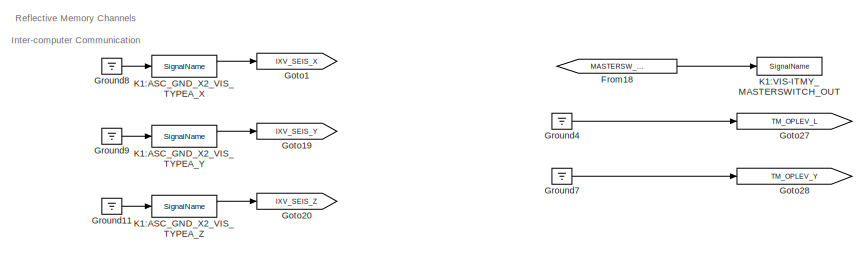
[diagram: root canvas - part 1/6, top center region]
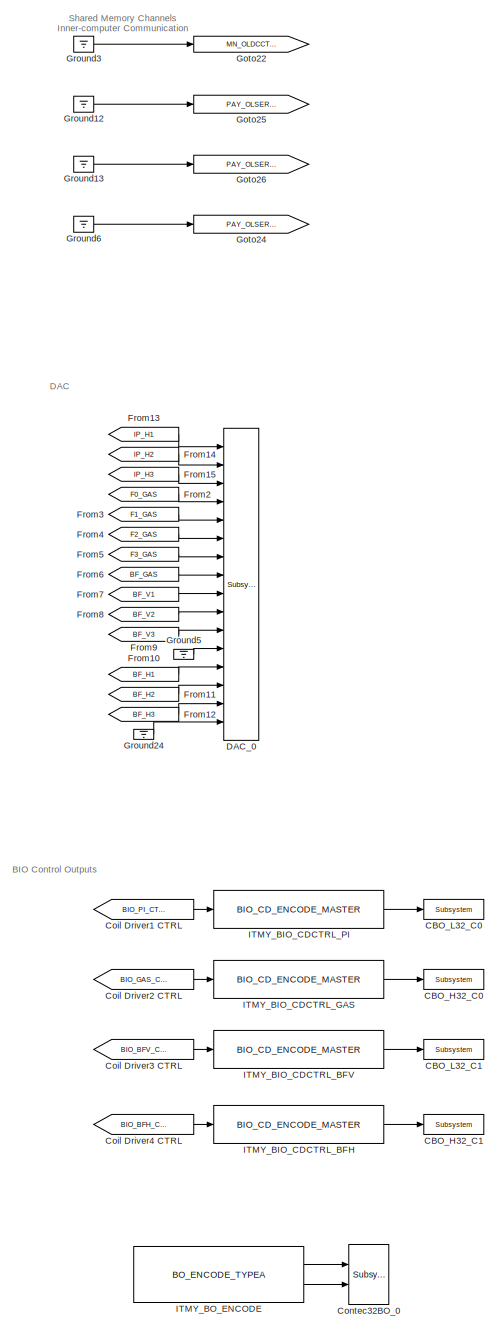
[diagram: root canvas - part 2/6, central region]
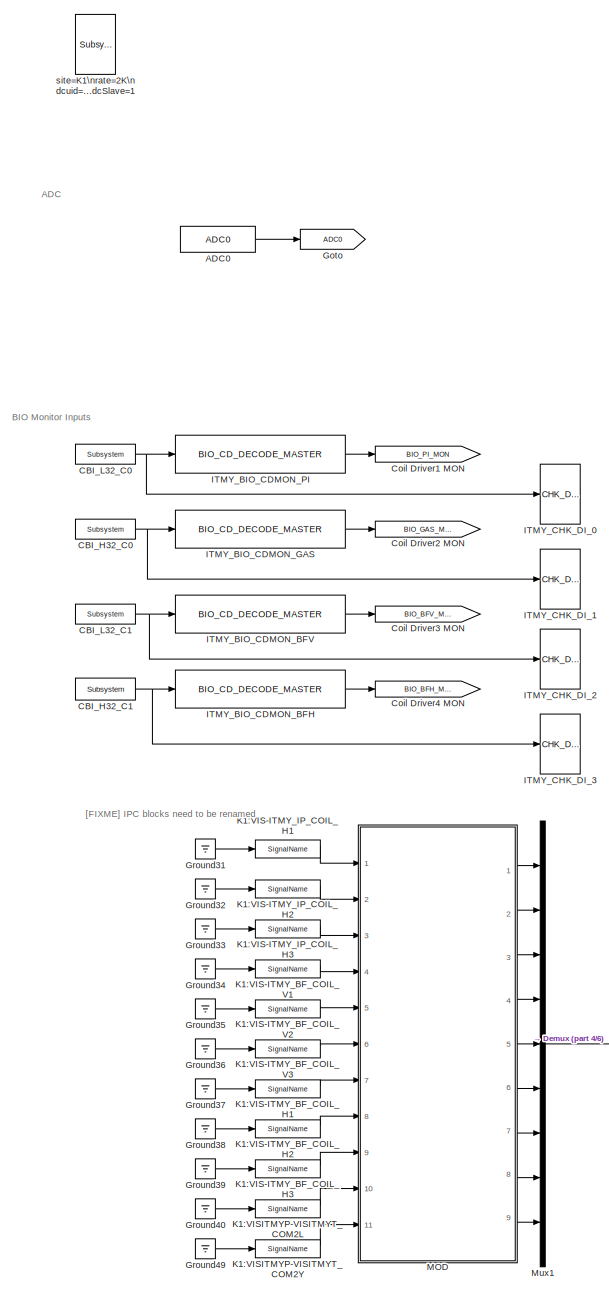
[diagram: root canvas - part 3/6, middle left region]
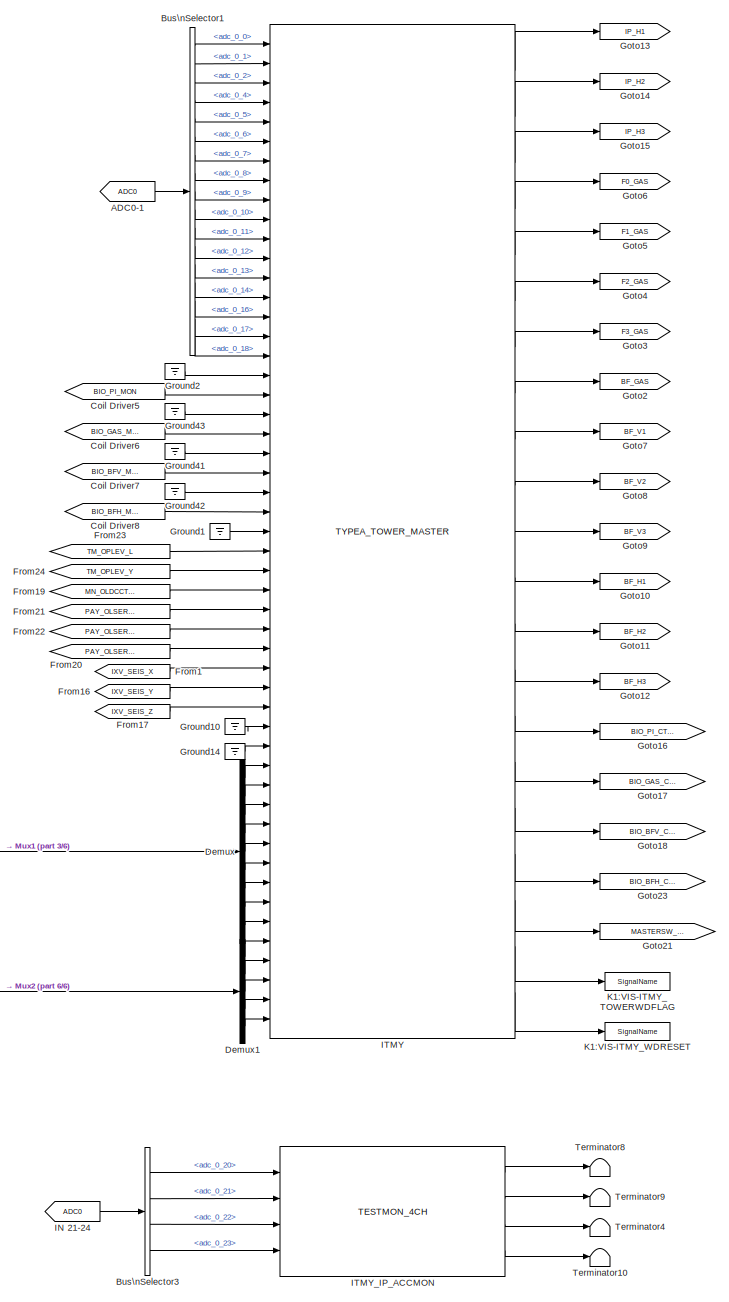
[diagram: root canvas - part 4/6, central region]
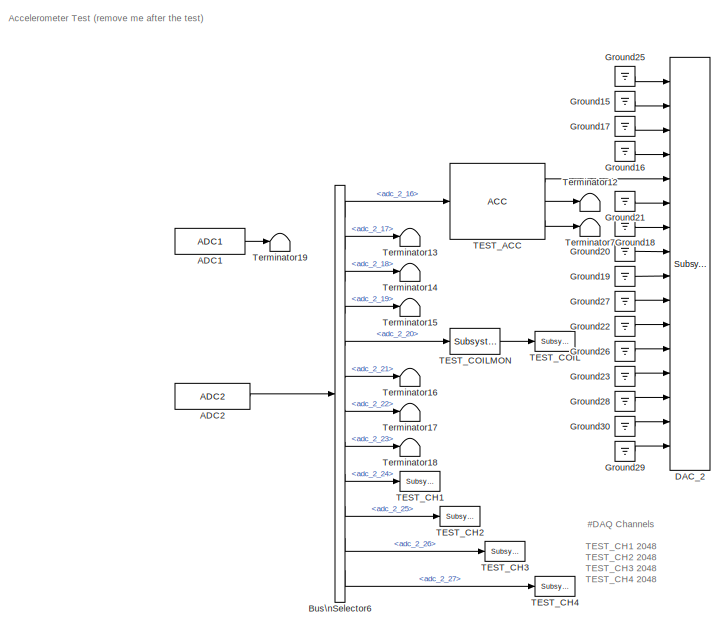
[diagram: root canvas - part 5/6, middle right region]
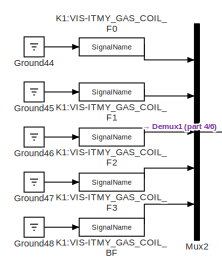
[diagram: root canvas - part 6/6, bottom left region]
MODEL k1visitmyt
KIND model
BLOCK [Reference] ADC0  REF=cdsAdcx0/ADC0
  AttributesFormatString = %<Description>\\n%<Tag>
  Description = type-GSC_16AI64SSA\ncard_num=0
  Ports = [0, 1]
  SID = 51
  SourceBlock = cdsAdcx0/ADC0
  SourceType = SubSystem
  Tag = cdsAdc
BLOCK [From] ADC0-1
  GotoTag = ADC0
  SID = 695
BLOCK [Reference] ADC1  REF=cdsAdcx1/ADC1
  AttributesFormatString = %<Description>\\n%<Tag>
  Description = type-GSC_16AI64SSA\ncard_num=1
  Ports = [0, 1]
  SID = 827
  SourceBlock = cdsAdcx1/ADC1
  SourceType = SubSystem
  Tag = cdsAdc
BLOCK [Reference] ADC2  REF=cdsAdcx2/ADC2
  AttributesFormatString = %<Description>\\n%<Tag>
  Description = type-GSC_16AI64SSA\ncard_num=2
  Ports = [0, 1]
  SID = 797
  SourceBlock = cdsAdcx2/ADC2
  SourceType = SubSystem
  Tag = cdsAdc
BLOCK [BusSelector] Bus\nSelector1
  OutputSignals = adc_0_0,adc_0_1,adc_0_2,adc_0_4,adc_0_5,adc_0_6,adc_0_7,adc_0_8,adc_0_9,adc_0_10,adc_0_11,adc_0_12,adc_0_13,adc_0_14,adc_0_16,adc_0_17,adc_0_18
  Ports = [1, 17]
  SID = 694
BLOCK [BusSelector] Bus\nSelector3
  OutputSignals = adc_0_20,adc_0_21,adc_0_22,adc_0_23
  Ports = [1, 4]
  SID = 286
BLOCK [BusSelector] Bus\nSelector6
  AttributesFormatString = %<Description>
  Description = ADC Selector
  OutputSignals = adc_2_16,adc_2_17,adc_2_18,adc_2_19,adc_2_20,adc_2_21,adc_2_22,adc_2_23,adc_2_24,adc_2_25,adc_2_26,adc_2_27
  Ports = [1, 12]
  SID = 798
BLOCK [Reference] CBI_H32_C0  REF=cdsCDI64/Subsystem
  AttributesFormatString = %<Tag>\\n%<Description>
  Description = card_num=1
  Ports = [0, 1]
  SID = 130
  SourceBlock = cdsCDI64/Subsystem
  SourceType = SubSystem
  Tag = cdsCDI64
BLOCK [Reference] CBI_H32_C1  REF=cdsCDI64/Subsystem
  AttributesFormatString = %<Tag>\\n%<Description>
  Description = card_num=3
  Ports = [0, 1]
  SID = 225
  SourceBlock = cdsCDI64/Subsystem
  SourceType = SubSystem
  Tag = cdsCDI64
BLOCK [Reference] CBI_L32_C0  REF=cdsCDI64/Subsystem
  AttributesFormatString = %<Tag>\\n%<Description>
  Description = card_num=0
  Ports = [0, 1]
  SID = 131
  SourceBlock = cdsCDI64/Subsystem
  SourceType = SubSystem
  Tag = cdsCDI64
BLOCK [Reference] CBI_L32_C1  REF=cdsCDI64/Subsystem
  AttributesFormatString = %<Tag>\\n%<Description>
  Description = card_num=2
  Ports = [0, 1]
  SID = 226
  SourceBlock = cdsCDI64/Subsystem
  SourceType = SubSystem
  Tag = cdsCDI64
BLOCK [Reference] CBO_H32_C0  REF=cdsCDO64/Subsystem
  AttributesFormatString = %<Tag>\\n%<Description>
  Description = card_num=1
  Ports = [1]
  SID = 132
  SourceBlock = cdsCDO64/Subsystem
  SourceType = SubSystem
  Tag = cdsCDO64
BLOCK [Reference] CBO_H32_C1  REF=cdsCDO64/Subsystem
  AttributesFormatString = %<Tag>\\n%<Description>
  Description = card_num=3
  Ports = [1]
  SID = 227
  SourceBlock = cdsCDO64/Subsystem
  SourceType = SubSystem
  Tag = cdsCDO64
BLOCK [Reference] CBO_L32_C0  REF=cdsCDO64/Subsystem
  AttributesFormatString = %<Tag>\\n%<Description>
  Description = card_num=0
  Ports = [1]
  SID = 133
  SourceBlock = cdsCDO64/Subsystem
  SourceType = SubSystem
  Tag = cdsCDO64
BLOCK [Reference] CBO_L32_C1  REF=cdsCDO64/Subsystem
  AttributesFormatString = %<Tag>\\n%<Description>
  Description = card_num=2
  Ports = [1]
  SID = 228
  SourceBlock = cdsCDO64/Subsystem
  SourceType = SubSystem
  Tag = cdsCDO64
BLOCK [From] Coil Driver1 CTRL
  GotoTag = BIO_PI_CTRL
  SID = 247
BLOCK [Goto] Coil Driver1 MON
  GotoTag = BIO_PI_MON
  SID = 258
BLOCK [From] Coil Driver2 CTRL
  GotoTag = BIO_GAS_CTRL
  SID = 253
BLOCK [Goto] Coil Driver2 MON
  GotoTag = BIO_GAS_MON
  SID = 259
BLOCK [From] Coil Driver3 CTRL
  GotoTag = BIO_BFV_CTRL
  SID = 254
BLOCK [Goto] Coil Driver3 MON
  GotoTag = BIO_BFV_MON
  SID = 260
BLOCK [From] Coil Driver4 CTRL
  GotoTag = BIO_BFH_CTRL
  SID = 265
BLOCK [Goto] Coil Driver4 MON
  GotoTag = BIO_BFH_MON
  SID = 261
BLOCK [From] Coil Driver5
  GotoTag = BIO_PI_MON
  SID = 266
BLOCK [From] Coil Driver6
  GotoTag = BIO_GAS_MON
  SID = 267
BLOCK [From] Coil Driver7
  GotoTag = BIO_BFV_MON
  SID = 268
BLOCK [From] Coil Driver8
  GotoTag = BIO_BFH_MON
  SID = 269
BLOCK [Reference] Contec32BO_0  REF=cdsCDO32/Subsystem
  AttributesFormatString = %<Tag>
  Description = Contec32 bit binary output module driver
  Ports = [2]
  SID = 418
  SourceBlock = cdsCDO32/Subsystem
  SourceType = SubSystem
  Tag = cdsCDO32
BLOCK [Reference] DAC_0  REF=dac/Subsystem  (lib defined in slx_40ef132df75b, slx_b7657ccccc5b, +4 more)
  AttributesFormatString = %<Description>
  Description = type=GSC_16AO16,\ncard_num=0
  Ports = [16]
  SID = 5
  SourceBlock = dac/Subsystem
  SourceType = SubSystem
BLOCK [Reference] DAC_2  REF=dac/Subsystem  (lib defined in slx_40ef132df75b, slx_b7657ccccc5b, +4 more)
  AttributesFormatString = %<Description>
  Description = type=GSC_16AO16,\ncard_num=2
  Ports = [16]
  SID = 792
  SourceBlock = dac/Subsystem
  SourceType = SubSystem
BLOCK [Demux] Demux
  DisplayOption = bar
  Outputs = 9
  Ports = [1, 9]
  SID = 925
BLOCK [Demux] Demux1
  DisplayOption = bar
  Outputs = 5
  Ports = [1, 5]
  SID = 993
BLOCK [From] From1
  GotoTag = IXV_SEIS_X
  SID = 752
BLOCK [From] From10
  GotoTag = BF_H1
  SID = 215
BLOCK [From] From11
  GotoTag = BF_H2
  SID = 216
BLOCK [From] From12
  GotoTag = BF_H3
  SID = 217
BLOCK [From] From13
  GotoTag = IP_H1
  SID = 221
BLOCK [From] From14
  GotoTag = IP_H2
  SID = 222
BLOCK [From] From15
  GotoTag = IP_H3
  SID = 223
BLOCK [From] From16
  GotoTag = IXV_SEIS_Y
  SID = 753
BLOCK [From] From17
  GotoTag = IXV_SEIS_Z
  SID = 754
BLOCK [From] From18
  GotoTag = MASTERSW_CTRL
  SID = 762
BLOCK [From] From19
  GotoTag = MN_OLDCCTRL
  SID = 763
BLOCK [From] From2
  GotoTag = F0_GAS
  SID = 152
BLOCK [From] From20
  GotoTag = PAY_OLSERVO_BFY
  SID = 764
BLOCK [From] From21
  GotoTag = PAY_OLSERVO_BFL
  SID = 776
BLOCK [From] From22
  GotoTag = PAY_OLSERVO_BFT
  SID = 777
BLOCK [From] From23
  GotoTag = TM_OPLEV_L
  SID = 787
BLOCK [From] From24
  GotoTag = TM_OPLEV_Y
  SID = 788
BLOCK [From] From3
  GotoTag = F1_GAS
  SID = 153
BLOCK [From] From4
  GotoTag = F2_GAS
  SID = 154
BLOCK [From] From5
  GotoTag = F3_GAS
  SID = 155
BLOCK [From] From6
  GotoTag = BF_GAS
  SID = 156
BLOCK [From] From7
  GotoTag = BF_V1
  SID = 212
BLOCK [From] From8
  GotoTag = BF_V2
  SID = 213
BLOCK [From] From9
  GotoTag = BF_V3
  SID = 214
BLOCK [Goto] Goto
  GotoTag = ADC0
  SID = 125
BLOCK [Goto] Goto1
  GotoTag = IXV_SEIS_X
  SID = 748
BLOCK [Goto] Goto10
  GotoTag = BF_H1
  SID = 209
BLOCK [Goto] Goto11
  GotoTag = BF_H2
  SID = 210
BLOCK [Goto] Goto12
  GotoTag = BF_H3
  SID = 211
BLOCK [Goto] Goto13
  GotoTag = IP_H1
  SID = 218
BLOCK [Goto] Goto14
  GotoTag = IP_H2
  SID = 219
BLOCK [Goto] Goto15
  GotoTag = IP_H3
  SID = 220
BLOCK [Goto] Goto16
  GotoTag = BIO_PI_CTRL
  SID = 248
BLOCK [Goto] Goto17
  GotoTag = BIO_GAS_CTRL
  SID = 251
BLOCK [Goto] Goto18
  GotoTag = BIO_BFV_CTRL
  SID = 252
BLOCK [Goto] Goto19
  GotoTag = IXV_SEIS_Y
  SID = 749
BLOCK [Goto] Goto2
  GotoTag = BF_GAS
  SID = 177
BLOCK [Goto] Goto20
  GotoTag = IXV_SEIS_Z
  SID = 750
BLOCK [Goto] Goto21
  GotoTag = MASTERSW_CTRL
  SID = 759
BLOCK [Goto] Goto22
  GotoTag = MN_OLDCCTRL
  SID = 760
BLOCK [Goto] Goto23
  GotoTag = BIO_BFH_CTRL
  SID = 264
BLOCK [Goto] Goto24
  GotoTag = PAY_OLSERVO_BFY
  SID = 761
BLOCK [Goto] Goto25
  GotoTag = PAY_OLSERVO_BFL
  SID = 768
BLOCK [Goto] Goto26
  GotoTag = PAY_OLSERVO_BFT
  SID = 772
BLOCK [Goto] Goto27
  GotoTag = TM_OPLEV_L
  SID = 779
BLOCK [Goto] Goto28
  GotoTag = TM_OPLEV_Y
  SID = 783
BLOCK [Goto] Goto3
  GotoTag = F3_GAS
  SID = 148
BLOCK [Goto] Goto4
  GotoTag = F2_GAS
  SID = 149
BLOCK [Goto] Goto5
  GotoTag = F1_GAS
  SID = 150
BLOCK [Goto] Goto6
  GotoTag = F0_GAS
  SID = 151
BLOCK [Goto] Goto7
  GotoTag = BF_V1
  SID = 206
BLOCK [Goto] Goto8
  GotoTag = BF_V2
  SID = 207
BLOCK [Goto] Goto9
  GotoTag = BF_V3
  SID = 208
BLOCK [Ground] Ground1
  SID = 791
BLOCK [Ground] Ground10
  SID = 741
BLOCK [Ground] Ground11
  SID = 746
BLOCK [Ground] Ground12
  SID = 769
BLOCK [Ground] Ground13
  SID = 773
BLOCK [Ground] Ground14
  SID = 789
BLOCK [Ground] Ground15
  SID = 794
BLOCK [Ground] Ground16
  SID = 795
BLOCK [Ground] Ground17
  SID = 796
BLOCK [Ground] Ground18
  SID = 802
BLOCK [Ground] Ground19
  SID = 803
BLOCK [Ground] Ground2
  SID = 730
BLOCK [Ground] Ground20
  SID = 804
BLOCK [Ground] Ground21
  SID = 805
BLOCK [Ground] Ground22
  SID = 806
BLOCK [Ground] Ground23
  SID = 807
BLOCK [Ground] Ground24
  SID = 304
BLOCK [Ground] Ground25
  SID = 793
BLOCK [Ground] Ground26
  SID = 808
BLOCK [Ground] Ground27
  SID = 809
BLOCK [Ground] Ground28
  SID = 810
BLOCK [Ground] Ground29
  SID = 811
BLOCK [Ground] Ground3
  SID = 708
BLOCK [Ground] Ground30
  SID = 812
BLOCK [Ground] Ground31
  SID = 908
BLOCK [Ground] Ground32
  SID = 909
BLOCK [Ground] Ground33
  SID = 910
BLOCK [Ground] Ground34
  SID = 911
BLOCK [Ground] Ground35
  SID = 912
BLOCK [Ground] Ground36
  SID = 913
BLOCK [Ground] Ground37
  SID = 921
BLOCK [Ground] Ground38
  SID = 922
BLOCK [Ground] Ground39
  SID = 923
BLOCK [Ground] Ground4
  SID = 780
BLOCK [Ground] Ground40
  SID = 1002
BLOCK [Ground] Ground41
  SID = 405
BLOCK [Ground] Ground42
  SID = 406
BLOCK [Ground] Ground43
  SID = 407
BLOCK [Ground] Ground44
  SID = 994
BLOCK [Ground] Ground45
  SID = 995
BLOCK [Ground] Ground46
  SID = 996
BLOCK [Ground] Ground47
  SID = 997
BLOCK [Ground] Ground48
  SID = 998
BLOCK [Ground] Ground49
  SID = 1003
BLOCK [Ground] Ground5
  SID = 303
BLOCK [Ground] Ground6
  SID = 710
BLOCK [Ground] Ground7
  SID = 784
BLOCK [Ground] Ground8
  SID = 743
BLOCK [Ground] Ground9
  SID = 745
BLOCK [From] IN 21-24
  GotoTag = ADC0
  SID = 287
BLOCK [Reference] ITMY  REF=TYPEA_MASTER/TYPEA_TOWER_MASTER
  Ports = [51, 21]
  SID = 693
  SourceBlock = TYPEA_MASTER/TYPEA_TOWER_MASTER
  SourceType = SubSystem
BLOCK [Reference] ITMY_BIO_CDCTRL_BFH  REF=BIO_CD_ENCODE_MASTER/BIO_CD_ENCODE_MASTER
  Ports = [1, 1]
  SID = 244
  SourceBlock = BIO_CD_ENCODE_MASTER/BIO_CD_ENCODE_MASTER
  SourceType = SubSystem
BLOCK [Reference] ITMY_BIO_CDCTRL_BFV  REF=BIO_CD_ENCODE_MASTER/BIO_CD_ENCODE_MASTER
  Ports = [1, 1]
  SID = 243
  SourceBlock = BIO_CD_ENCODE_MASTER/BIO_CD_ENCODE_MASTER
  SourceType = SubSystem
BLOCK [Reference] ITMY_BIO_CDCTRL_GAS  REF=BIO_CD_ENCODE_MASTER/BIO_CD_ENCODE_MASTER
  Ports = [1, 1]
  SID = 242
  SourceBlock = BIO_CD_ENCODE_MASTER/BIO_CD_ENCODE_MASTER
  SourceType = SubSystem
BLOCK [Reference] ITMY_BIO_CDCTRL_PI  REF=BIO_CD_ENCODE_MASTER/BIO_CD_ENCODE_MASTER
  Ports = [1, 1]
  SID = 240
  SourceBlock = BIO_CD_ENCODE_MASTER/BIO_CD_ENCODE_MASTER
  SourceType = SubSystem
BLOCK [Reference] ITMY_BIO_CDMON_BFH  REF=BIO_CD_DECODE_MASTER/BIO_CD_DECODE_MASTER
  Ports = [1, 1]
  SID = 239
  SourceBlock = BIO_CD_DECODE_MASTER/BIO_CD_DECODE_MASTER
  SourceType = SubSystem
BLOCK [Reference] ITMY_BIO_CDMON_BFV  REF=BIO_CD_DECODE_MASTER/BIO_CD_DECODE_MASTER
  Ports = [1, 1]
  SID = 238
  SourceBlock = BIO_CD_DECODE_MASTER/BIO_CD_DECODE_MASTER
  SourceType = SubSystem
BLOCK [Reference] ITMY_BIO_CDMON_GAS  REF=BIO_CD_DECODE_MASTER/BIO_CD_DECODE_MASTER
  Ports = [1, 1]
  SID = 237
  SourceBlock = BIO_CD_DECODE_MASTER/BIO_CD_DECODE_MASTER
  SourceType = SubSystem
BLOCK [Reference] ITMY_BIO_CDMON_PI  REF=BIO_CD_DECODE_MASTER/BIO_CD_DECODE_MASTER
  Ports = [1, 1]
  SID = 235
  SourceBlock = BIO_CD_DECODE_MASTER/BIO_CD_DECODE_MASTER
  SourceType = SubSystem
BLOCK [Reference] ITMY_BO_ENCODE  REF=BO_TYPEA_MASTER/BO_ENCODE_TYPEA
  Ports = [0, 2]
  SID = 489
  SourceBlock = BO_TYPEA_MASTER/BO_ENCODE_TYPEA
  SourceType = SubSystem
BLOCK [Reference] ITMY_CHK_DI_0  REF=CHK_DIO/CHK_DI_0
  Ports = [1]
  SID = 683
  SourceBlock = CHK_DIO/CHK_DI_0
  SourceType = SubSystem
BLOCK [Reference] ITMY_CHK_DI_1  REF=CHK_DIO/CHK_DI_0
  Ports = [1]
  SID = 684
  SourceBlock = CHK_DIO/CHK_DI_0
  SourceType = SubSystem
BLOCK [Reference] ITMY_CHK_DI_2  REF=CHK_DIO/CHK_DI_0
  Ports = [1]
  SID = 685
  SourceBlock = CHK_DIO/CHK_DI_0
  SourceType = SubSystem
BLOCK [Reference] ITMY_CHK_DI_3  REF=CHK_DIO/CHK_DI_0
  Ports = [1]
  SID = 686
  SourceBlock = CHK_DIO/CHK_DI_0
  SourceType = SubSystem
BLOCK [Reference] ITMY_IP_ACCMON  REF=TESTMON_4CH_MASTER/TESTMON_4CH
  Ports = [4, 4]
  SID = 285
  SourceBlock = TESTMON_4CH_MASTER/TESTMON_4CH
  SourceType = SubSystem
BLOCK [Reference] K1:ASC_GND_X2_VIS_TYPEA_X  REF=cdsIPCx/SignalName
  AttributesFormatString = %<Description>\\n%<Tag>
  Description = card=1
  Ports = [1, 2]
  SID = 765
  SourceBlock = cdsIPCx/SignalName
  SourceType = SubSystem
  Tag = cdsIPCx_RFM
BLOCK [Reference] K1:ASC_GND_X2_VIS_TYPEA_Y  REF=cdsIPCx/SignalName
  AttributesFormatString = %<Description>\\n%<Tag>
  Description = card=1
  Ports = [1, 2]
  SID = 766
  SourceBlock = cdsIPCx/SignalName
  SourceType = SubSystem
  Tag = cdsIPCx_RFM
BLOCK [Reference] K1:ASC_GND_X2_VIS_TYPEA_Z  REF=cdsIPCx/SignalName
  AttributesFormatString = %<Description>\\n%<Tag>
  Description = card=1
  Ports = [1, 2]
  SID = 767
  SourceBlock = cdsIPCx/SignalName
  SourceType = SubSystem
  Tag = cdsIPCx_RFM
BLOCK [Reference] K1:VIS-ITMY_BF_COIL_H1  REF=cdsIPCx/SignalName
  AttributesFormatString = %<Tag>
  Description = Inter-Process Communication via Shared memory.
  Ports = [1, 2]
  SID = 898
  SourceBlock = cdsIPCx/SignalName
  SourceType = SubSystem
  Tag = cdsIPCx_SHMEM
BLOCK [Reference] K1:VIS-ITMY_BF_COIL_H2  REF=cdsIPCx/SignalName
  AttributesFormatString = %<Tag>
  Description = Inter-Process Communication via Shared memory.
  Ports = [1, 2]
  SID = 899
  SourceBlock = cdsIPCx/SignalName
  SourceType = SubSystem
  Tag = cdsIPCx_SHMEM
BLOCK [Reference] K1:VIS-ITMY_BF_COIL_H3  REF=cdsIPCx/SignalName
  AttributesFormatString = %<Tag>
  Description = Inter-Process Communication via Shared memory.
  Ports = [1, 2]
  SID = 900
  SourceBlock = cdsIPCx/SignalName
  SourceType = SubSystem
  Tag = cdsIPCx_SHMEM
BLOCK [Reference] K1:VIS-ITMY_BF_COIL_V1  REF=cdsIPCx/SignalName
  AttributesFormatString = %<Tag>
  Description = Inter-Process Communication via Shared memory.
  Ports = [1, 2]
  SID = 901
  SourceBlock = cdsIPCx/SignalName
  SourceType = SubSystem
  Tag = cdsIPCx_SHMEM
BLOCK [Reference] K1:VIS-ITMY_BF_COIL_V2  REF=cdsIPCx/SignalName
  AttributesFormatString = %<Tag>
  Description = Inter-Process Communication via Shared memory.
  Ports = [1, 2]
  SID = 902
  SourceBlock = cdsIPCx/SignalName
  SourceType = SubSystem
  Tag = cdsIPCx_SHMEM
BLOCK [Reference] K1:VIS-ITMY_BF_COIL_V3  REF=cdsIPCx/SignalName
  AttributesFormatString = %<Tag>
  Description = Inter-Process Communication via Shared memory.
  Ports = [1, 2]
  SID = 903
  SourceBlock = cdsIPCx/SignalName
  SourceType = SubSystem
  Tag = cdsIPCx_SHMEM
BLOCK [Reference] K1:VIS-ITMY_GAS_COIL_BF  REF=cdsIPCx/SignalName
  AttributesFormatString = %<Tag>
  Description = Inter-Process Communication via Shared memory.
  Ports = [1, 2]
  SID = 987
  SourceBlock = cdsIPCx/SignalName
  SourceType = SubSystem
  Tag = cdsIPCx_SHMEM
BLOCK [Reference] K1:VIS-ITMY_GAS_COIL_F0  REF=cdsIPCx/SignalName
  AttributesFormatString = %<Tag>
  Description = Inter-Process Communication via Shared memory.
  Ports = [1, 2]
  SID = 988
  SourceBlock = cdsIPCx/SignalName
  SourceType = SubSystem
  Tag = cdsIPCx_SHMEM
BLOCK [Reference] K1:VIS-ITMY_GAS_COIL_F1  REF=cdsIPCx/SignalName
  AttributesFormatString = %<Tag>
  Description = Inter-Process Communication via Shared memory.
  Ports = [1, 2]
  SID = 989
  SourceBlock = cdsIPCx/SignalName
  SourceType = SubSystem
  Tag = cdsIPCx_SHMEM
BLOCK [Reference] K1:VIS-ITMY_GAS_COIL_F2  REF=cdsIPCx/SignalName
  AttributesFormatString = %<Tag>
  Description = Inter-Process Communication via Shared memory.
  Ports = [1, 2]
  SID = 990
  SourceBlock = cdsIPCx/SignalName
  SourceType = SubSystem
  Tag = cdsIPCx_SHMEM
BLOCK [Reference] K1:VIS-ITMY_GAS_COIL_F3  REF=cdsIPCx/SignalName
  AttributesFormatString = %<Tag>
  Description = Inter-Process Communication via Shared memory.
  Ports = [1, 2]
  SID = 991
  SourceBlock = cdsIPCx/SignalName
  SourceType = SubSystem
  Tag = cdsIPCx_SHMEM
BLOCK [Reference] K1:VIS-ITMY_IP_COIL_H1  REF=cdsIPCx/SignalName
  AttributesFormatString = %<Tag>
  Description = Inter-Process Communication via Shared memory.
  Ports = [1, 2]
  SID = 904
  SourceBlock = cdsIPCx/SignalName
  SourceType = SubSystem
  Tag = cdsIPCx_SHMEM
BLOCK [Reference] K1:VIS-ITMY_IP_COIL_H2  REF=cdsIPCx/SignalName
  AttributesFormatString = %<Tag>
  Description = Inter-Process Communication via Shared memory.
  Ports = [1, 2]
  SID = 905
  SourceBlock = cdsIPCx/SignalName
  SourceType = SubSystem
  Tag = cdsIPCx_SHMEM
BLOCK [Reference] K1:VIS-ITMY_IP_COIL_H3  REF=cdsIPCx/SignalName
  AttributesFormatString = %<Tag>
  Description = Inter-Process Communication via Shared memory.
  Ports = [1, 2]
  SID = 906
  SourceBlock = cdsIPCx/SignalName
  SourceType = SubSystem
  Tag = cdsIPCx_SHMEM
BLOCK [Reference] K1:VIS-ITMY_MASTERSWITCH_OUT  REF=cdsIPCx/SignalName
  AttributesFormatString = %<Tag>
  Description = Inter-Process Communication via Shared memory.
  Ports = [1, 2]
  SID = 696
  SourceBlock = cdsIPCx/SignalName
  SourceType = SubSystem
  Tag = cdsIPCx_SHMEM
BLOCK [Reference] K1:VIS-ITMY_TOWERWDFLAG  REF=cdsIPCx/SignalName
  AttributesFormatString = %<Tag>
  Description = Inter-Process Communication via Shared memory.
  Ports = [1, 2]
  SID = 712
  SourceBlock = cdsIPCx/SignalName
  SourceType = SubSystem
  Tag = cdsIPCx_SHMEM
BLOCK [Reference] K1:VIS-ITMY_WDRESET  REF=cdsIPCx/SignalName
  AttributesFormatString = %<Tag>
  Description = Inter-Process Communication via Shared memory.
  Ports = [1, 2]
  SID = 727
  SourceBlock = cdsIPCx/SignalName
  SourceType = SubSystem
  Tag = cdsIPCx_SHMEM
BLOCK [Reference] K1:VISITMYP-VISITMYT_COM2L  REF=cdsIPCx/SignalName
  AttributesFormatString = %<Tag>
  Description = Inter-Process Communication via Shared memory.
  Ports = [1, 2]
  SID = 999
  SourceBlock = cdsIPCx/SignalName
  SourceType = SubSystem
  Tag = cdsIPCx_SHMEM
BLOCK [Reference] K1:VISITMYP-VISITMYT_COM2Y  REF=cdsIPCx/SignalName
  AttributesFormatString = %<Tag>
  Description = Inter-Process Communication via Shared memory.
  Ports = [1, 2]
  SID = 1000
  SourceBlock = cdsIPCx/SignalName
  SourceType = SubSystem
  Tag = cdsIPCx_SHMEM
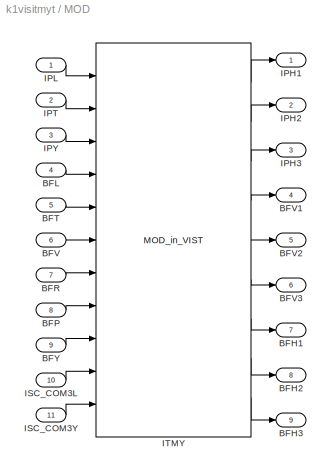
BLOCK [SubSystem] MOD
  Ports = [11, 9]
  RequestExecContextInheritance = off
  SID = 948
  Tag = top_names
  Variant = off
BLOCK [Outport] MOD/BFH1
  IconDisplay = Port number
  Port = 7
  SID = 982
BLOCK [Outport] MOD/BFH2
  IconDisplay = Port number
  Port = 8
  SID = 983
BLOCK [Outport] MOD/BFH3
  IconDisplay = Port number
  Port = 9
  SID = 984
BLOCK [Inport] MOD/BFL
  IconDisplay = Port number
  Port = 4
  SID = 970
BLOCK [Inport] MOD/BFP
  IconDisplay = Port number
  Port = 8
  SID = 974
BLOCK [Inport] MOD/BFR
  IconDisplay = Port number
  Port = 7
  SID = 973
BLOCK [Inport] MOD/BFT
  IconDisplay = Port number
  Port = 5
  SID = 971
BLOCK [Inport] MOD/BFV
  IconDisplay = Port number
  Port = 6
  SID = 972
BLOCK [Outport] MOD/BFV1
  IconDisplay = Port number
  Port = 4
  SID = 979
BLOCK [Outport] MOD/BFV2
  IconDisplay = Port number
  Port = 5
  SID = 980
BLOCK [Outport] MOD/BFV3
  IconDisplay = Port number
  Port = 6
  SID = 981
BLOCK [Inport] MOD/BFY
  IconDisplay = Port number
  Port = 9
  SID = 975
BLOCK [Outport] MOD/IPH1
  IconDisplay = Port number
  SID = 976
BLOCK [Outport] MOD/IPH2
  IconDisplay = Port number
  Port = 2
  SID = 977
BLOCK [Outport] MOD/IPH3
  IconDisplay = Port number
  Port = 3
  SID = 978
BLOCK [Inport] MOD/IPL
  IconDisplay = Port number
  SID = 967
BLOCK [Inport] MOD/IPT
  IconDisplay = Port number
  Port = 2
  SID = 968
BLOCK [Inport] MOD/IPY
  IconDisplay = Port number
  Port = 3
  SID = 969
BLOCK [Inport] MOD/ISC_COM3L
  IconDisplay = Port number
  Port = 10
  SID = 985
BLOCK [Inport] MOD/ISC_COM3Y
  IconDisplay = Port number
  Port = 11
  SID = 1001
BLOCK [Reference] MOD/ITMY  REF=VIS_LIB/MODAL/MOD_in_VIST
  Ports = [11, 9]
  SID = 947
  SourceBlock = VIS_LIB/MODAL/MOD_in_VIST
  SourceType = SubSystem
  Tag = top_names
BLOCK [Mux] Mux1
  DisplayOption = bar
  Inputs = 9
  Ports = [9, 1]
  SID = 924
BLOCK [Mux] Mux2
  DisplayOption = bar
  Inputs = 5
  Ports = [5, 1]
  SID = 992
BLOCK [Reference] TEST_ACC  REF=VIS_LIB/ACC
  Ports = [1, 3]
  SID = 799
  SourceBlock = VIS_LIB/ACC
  SourceType = SubSystem
BLOCK [Reference] TEST_CH1  REF=cdsTP/Subsystem
  AttributesFormatString = %<Tag>
  Ports = [1]
  SID = 816
  SourceBlock = cdsTP/Subsystem
  SourceType = SubSystem
  Tag = Test Point
BLOCK [Reference] TEST_CH2  REF=cdsTP/Subsystem
  AttributesFormatString = %<Tag>
  Ports = [1]
  SID = 823
  SourceBlock = cdsTP/Subsystem
  SourceType = SubSystem
  Tag = Test Point
BLOCK [Reference] TEST_CH3  REF=cdsTP/Subsystem
  AttributesFormatString = %<Tag>
  Ports = [1]
  SID = 824
  SourceBlock = cdsTP/Subsystem
  SourceType = SubSystem
  Tag = Test Point
BLOCK [Reference] TEST_CH4  REF=cdsTP/Subsystem
  AttributesFormatString = %<Tag>
  Ports = [1]
  SID = 825
  SourceBlock = cdsTP/Subsystem
  SourceType = SubSystem
  Tag = Test Point
BLOCK [Reference] TEST_COIL  REF=cdsTP/Subsystem
  AttributesFormatString = %<Tag>
  Ports = [1]
  SID = 814
  SourceBlock = cdsTP/Subsystem
  SourceType = SubSystem
  Tag = Test Point
BLOCK [Reference] TEST_COILMON  REF=cdsEpicsOut/Subsystem
  AttributesFormatString = %<Tag>
  Description = Purpose:                                          \nOutput a FE signal to an EPICS channel.           \n                                                  \nOperation:                                        \nTakes input value and passes it to EPICS record.  \n                                                  \nUsage:                                            \nName the part with the desired EPICS...<+14ch>
  Ports = [1, 1]
  SID = 815
  SourceBlock = cdsEpicsOut/Subsystem
  SourceType = SubSystem
  Tag = cdsEpicsOutput
BLOCK [Terminator] Terminator10
  SID = 293
BLOCK [Terminator] Terminator12
  SID = 801
BLOCK [Terminator] Terminator13
  SID = 817
BLOCK [Terminator] Terminator14
  SID = 818
BLOCK [Terminator] Terminator15
  SID = 819
BLOCK [Terminator] Terminator16
  SID = 820
BLOCK [Terminator] Terminator17
  SID = 821
BLOCK [Terminator] Terminator18
  SID = 822
BLOCK [Terminator] Terminator19
  SID = 828
BLOCK [Terminator] Terminator4
  SID = 290
BLOCK [Terminator] Terminator7
  SID = 800
BLOCK [Terminator] Terminator8
  SID = 291
BLOCK [Terminator] Terminator9
  SID = 292
BLOCK [Reference] site=K1\nrate=2K\ndcuid=97\nhost=k1iy1\nspecific_cpu=2\nadcSlave=1  REF=cdsParameters/Subsystem
  AttributesFormatString = %<Tag>
  Description = Purpose:                                                                                                                                                                                                                                \nProvide system parameters to the FE code generator to properly configure the generated EPICS names, rep rate of the FE controller, and the Data Acquisition node ID fo...<+2934ch>
  Ports = []
  SID = 716
  SourceBlock = cdsParameters/Subsystem
  SourceType = SubSystem
  Tag = cdsParameters
ANNOTATION (root): #DAQ Channels\n\nTEST_CH1 2048\nTEST_CH2 2048\nTEST_CH3 2048\nTEST_CH4 2048
ANNOTATION (root): \n \n ADC
ANNOTATION (root): \n \n BIO Control Outputs
ANNOTATION (root): \n \n Accelerometer Test (remove me after the test)
ANNOTATION (root): \n \n BIO Monitor Inputs
ANNOTATION (root): \n \n DAC
ANNOTATION (root): \n \n [FIXME] IPC blocks need to be renamed
ANNOTATION (root): \n \n Reflective Memory Channels \n Inter-computer Communication
ANNOTATION (root): \n \n Shared Memory Channels \n Inner-computer Communication
LINE ADC0-1:1 -> Bus\nSelector1:1
LINE ADC0:1 -> Goto:1
LINE ADC1:1 -> Terminator19:1
LINE ADC2:1 -> Bus\nSelector6:1
LINE Bus\nSelector1:1 -> ITMY:1
LINE Bus\nSelector1:10 -> ITMY:10
LINE Bus\nSelector1:11 -> ITMY:11
LINE Bus\nSelector1:12 -> ITMY:12
LINE Bus\nSelector1:13 -> ITMY:13
LINE Bus\nSelector1:14 -> ITMY:14
LINE Bus\nSelector1:15 -> ITMY:15
LINE Bus\nSelector1:16 -> ITMY:16
LINE Bus\nSelector1:17 -> ITMY:17
LINE Bus\nSelector1:2 -> ITMY:2
LINE Bus\nSelector1:3 -> ITMY:3
LINE Bus\nSelector1:4 -> ITMY:4
LINE Bus\nSelector1:5 -> ITMY:5
LINE Bus\nSelector1:6 -> ITMY:6
LINE Bus\nSelector1:7 -> ITMY:7
LINE Bus\nSelector1:8 -> ITMY:8
LINE Bus\nSelector1:9 -> ITMY:9
LINE Bus\nSelector3:1 -> ITMY_IP_ACCMON:1
LINE Bus\nSelector3:2 -> ITMY_IP_ACCMON:2
LINE Bus\nSelector3:3 -> ITMY_IP_ACCMON:3
LINE Bus\nSelector3:4 -> ITMY_IP_ACCMON:4
LINE Bus\nSelector6:1 -> TEST_ACC:1
LINE Bus\nSelector6:10 -> TEST_CH2:1
LINE Bus\nSelector6:11 -> TEST_CH3:1
LINE Bus\nSelector6:12 -> TEST_CH4:1
LINE Bus\nSelector6:2 -> Terminator13:1
LINE Bus\nSelector6:3 -> Terminator14:1
LINE Bus\nSelector6:4 -> Terminator15:1
LINE Bus\nSelector6:5 -> TEST_COILMON:1
LINE Bus\nSelector6:6 -> Terminator16:1
LINE Bus\nSelector6:7 -> Terminator17:1
LINE Bus\nSelector6:8 -> Terminator18:1
LINE Bus\nSelector6:9 -> TEST_CH1:1
NET CBI_H32_C0:1 -> ITMY_BIO_CDMON_GAS:1, ITMY_CHK_DI_1:1
NET CBI_H32_C1:1 -> ITMY_BIO_CDMON_BFH:1, ITMY_CHK_DI_3:1
NET CBI_L32_C0:1 -> ITMY_BIO_CDMON_PI:1, ITMY_CHK_DI_0:1
NET CBI_L32_C1:1 -> ITMY_BIO_CDMON_BFV:1, ITMY_CHK_DI_2:1
LINE Coil Driver1 CTRL:1 -> ITMY_BIO_CDCTRL_PI:1
LINE Coil Driver2 CTRL:1 -> ITMY_BIO_CDCTRL_GAS:1
LINE Coil Driver3 CTRL:1 -> ITMY_BIO_CDCTRL_BFV:1
LINE Coil Driver4 CTRL:1 -> ITMY_BIO_CDCTRL_BFH:1
LINE Coil Driver5:1 -> ITMY:19
LINE Coil Driver6:1 -> ITMY:21
LINE Coil Driver7:1 -> ITMY:23
LINE Coil Driver8:1 -> ITMY:25
LINE Demux1:1 -> ITMY:47
LINE Demux1:2 -> ITMY:48
LINE Demux1:3 -> ITMY:49
LINE Demux1:4 -> ITMY:50
LINE Demux1:5 -> ITMY:51
LINE Demux:1 -> ITMY:38
LINE Demux:2 -> ITMY:39
LINE Demux:3 -> ITMY:40
LINE Demux:4 -> ITMY:41
LINE Demux:5 -> ITMY:42
LINE Demux:6 -> ITMY:43
LINE Demux:7 -> ITMY:44
LINE Demux:8 -> ITMY:45
LINE Demux:9 -> ITMY:46
LINE From10:1 -> DAC_0:13
LINE From11:1 -> DAC_0:14
LINE From12:1 -> DAC_0:15
LINE From13:1 -> DAC_0:1
LINE From14:1 -> DAC_0:2
LINE From15:1 -> DAC_0:3
LINE From16:1 -> ITMY:34
LINE From17:1 -> ITMY:35
LINE From18:1 -> K1:VIS-ITMY_MASTERSWITCH_OUT:1
LINE From19:1 -> ITMY:29
LINE From1:1 -> ITMY:33
LINE From20:1 -> ITMY:32
LINE From21:1 -> ITMY:30
LINE From22:1 -> ITMY:31
LINE From23:1 -> ITMY:27
LINE From24:1 -> ITMY:28
LINE From2:1 -> DAC_0:4
LINE From3:1 -> DAC_0:5
LINE From4:1 -> DAC_0:6
LINE From5:1 -> DAC_0:7
LINE From6:1 -> DAC_0:8
LINE From7:1 -> DAC_0:9
LINE From8:1 -> DAC_0:10
LINE From9:1 -> DAC_0:11
LINE Ground10:1 -> ITMY:36
LINE Ground11:1 -> K1:ASC_GND_X2_VIS_TYPEA_Z:1
LINE Ground12:1 -> Goto25:1
LINE Ground13:1 -> Goto26:1
LINE Ground14:1 -> ITMY:37
LINE Ground15:1 -> DAC_2:2
LINE Ground16:1 -> DAC_2:4
LINE Ground17:1 -> DAC_2:3
LINE Ground18:1 -> DAC_2:7
LINE Ground19:1 -> DAC_2:9
LINE Ground1:1 -> ITMY:26
LINE Ground20:1 -> DAC_2:8
LINE Ground21:1 -> DAC_2:6
LINE Ground22:1 -> DAC_2:11
LINE Ground23:1 -> DAC_2:13
LINE Ground24:1 -> DAC_0:16
LINE Ground25:1 -> DAC_2:1
LINE Ground26:1 -> DAC_2:12
LINE Ground27:1 -> DAC_2:10
LINE Ground28:1 -> DAC_2:14
LINE Ground29:1 -> DAC_2:16
LINE Ground2:1 -> ITMY:18
LINE Ground30:1 -> DAC_2:15
LINE Ground31:1 -> K1:VIS-ITMY_IP_COIL_H1:1
LINE Ground32:1 -> K1:VIS-ITMY_IP_COIL_H2:1
LINE Ground33:1 -> K1:VIS-ITMY_IP_COIL_H3:1
LINE Ground34:1 -> K1:VIS-ITMY_BF_COIL_V1:1
LINE Ground35:1 -> K1:VIS-ITMY_BF_COIL_V2:1
LINE Ground36:1 -> K1:VIS-ITMY_BF_COIL_V3:1
LINE Ground37:1 -> K1:VIS-ITMY_BF_COIL_H1:1
LINE Ground38:1 -> K1:VIS-ITMY_BF_COIL_H2:1
LINE Ground39:1 -> K1:VIS-ITMY_BF_COIL_H3:1
LINE Ground3:1 -> Goto22:1
LINE Ground40:1 -> K1:VISITMYP-VISITMYT_COM2L:1
LINE Ground41:1 -> ITMY:22
LINE Ground42:1 -> ITMY:24
LINE Ground43:1 -> ITMY:20
LINE Ground44:1 -> K1:VIS-ITMY_GAS_COIL_F0:1
LINE Ground45:1 -> K1:VIS-ITMY_GAS_COIL_F1:1
LINE Ground46:1 -> K1:VIS-ITMY_GAS_COIL_F2:1
LINE Ground47:1 -> K1:VIS-ITMY_GAS_COIL_F3:1
LINE Ground48:1 -> K1:VIS-ITMY_GAS_COIL_BF:1
LINE Ground49:1 -> K1:VISITMYP-VISITMYT_COM2Y:1
LINE Ground4:1 -> Goto27:1
LINE Ground5:1 -> DAC_0:12
LINE Ground6:1 -> Goto24:1
LINE Ground7:1 -> Goto28:1
LINE Ground8:1 -> K1:ASC_GND_X2_VIS_TYPEA_X:1
LINE Ground9:1 -> K1:ASC_GND_X2_VIS_TYPEA_Y:1
LINE IN 21-24:1 -> Bus\nSelector3:1
LINE ITMY:1 -> Goto13:1
LINE ITMY:10 -> Goto8:1
LINE ITMY:11 -> Goto9:1
LINE ITMY:12 -> Goto10:1
LINE ITMY:13 -> Goto11:1
LINE ITMY:14 -> Goto12:1
LINE ITMY:15 -> Goto16:1
LINE ITMY:16 -> Goto17:1
LINE ITMY:17 -> Goto18:1
LINE ITMY:18 -> Goto23:1
LINE ITMY:19 -> Goto21:1
LINE ITMY:2 -> Goto14:1
LINE ITMY:20 -> K1:VIS-ITMY_TOWERWDFLAG:1
LINE ITMY:21 -> K1:VIS-ITMY_WDRESET:1
LINE ITMY:3 -> Goto15:1
LINE ITMY:4 -> Goto6:1
LINE ITMY:5 -> Goto5:1
LINE ITMY:6 -> Goto4:1
LINE ITMY:7 -> Goto3:1
LINE ITMY:8 -> Goto2:1
LINE ITMY:9 -> Goto7:1
LINE ITMY_BIO_CDCTRL_BFH:1 -> CBO_H32_C1:1
LINE ITMY_BIO_CDCTRL_BFV:1 -> CBO_L32_C1:1
LINE ITMY_BIO_CDCTRL_GAS:1 -> CBO_H32_C0:1
LINE ITMY_BIO_CDCTRL_PI:1 -> CBO_L32_C0:1
LINE ITMY_BIO_CDMON_BFH:1 -> Coil Driver4 MON:1
LINE ITMY_BIO_CDMON_BFV:1 -> Coil Driver3 MON:1
LINE ITMY_BIO_CDMON_GAS:1 -> Coil Driver2 MON:1
LINE ITMY_BIO_CDMON_PI:1 -> Coil Driver1 MON:1
LINE ITMY_BO_ENCODE:1 -> Contec32BO_0:1
LINE ITMY_BO_ENCODE:2 -> Contec32BO_0:2
LINE ITMY_IP_ACCMON:1 -> Terminator8:1
LINE ITMY_IP_ACCMON:2 -> Terminator9:1
LINE ITMY_IP_ACCMON:3 -> Terminator4:1
LINE ITMY_IP_ACCMON:4 -> Terminator10:1
LINE K1:ASC_GND_X2_VIS_TYPEA_X:1 -> Goto1:1
LINE K1:ASC_GND_X2_VIS_TYPEA_Y:1 -> Goto19:1
LINE K1:ASC_GND_X2_VIS_TYPEA_Z:1 -> Goto20:1
LINE K1:VIS-ITMY_BF_COIL_H1:1 -> MOD:7
LINE K1:VIS-ITMY_BF_COIL_H2:1 -> MOD:8
LINE K1:VIS-ITMY_BF_COIL_H3:1 -> MOD:9
LINE K1:VIS-ITMY_BF_COIL_V1:1 -> MOD:4
LINE K1:VIS-ITMY_BF_COIL_V2:1 -> MOD:5
LINE K1:VIS-ITMY_BF_COIL_V3:1 -> MOD:6
LINE K1:VIS-ITMY_GAS_COIL_BF:1 -> Mux2:5
LINE K1:VIS-ITMY_GAS_COIL_F0:1 -> Mux2:1
LINE K1:VIS-ITMY_GAS_COIL_F1:1 -> Mux2:2
LINE K1:VIS-ITMY_GAS_COIL_F2:1 -> Mux2:3
LINE K1:VIS-ITMY_GAS_COIL_F3:1 -> Mux2:4
LINE K1:VIS-ITMY_IP_COIL_H1:1 -> MOD:1
LINE K1:VIS-ITMY_IP_COIL_H2:1 -> MOD:2
LINE K1:VIS-ITMY_IP_COIL_H3:1 -> MOD:3
LINE K1:VISITMYP-VISITMYT_COM2L:1 -> MOD:10
LINE K1:VISITMYP-VISITMYT_COM2Y:1 -> MOD:11
LINE MOD/BFL:1 -> MOD/ITMY:4
LINE MOD/BFP:1 -> MOD/ITMY:8
LINE MOD/BFR:1 -> MOD/ITMY:7
LINE MOD/BFT:1 -> MOD/ITMY:5
LINE MOD/BFV:1 -> MOD/ITMY:6
LINE MOD/BFY:1 -> MOD/ITMY:9
LINE MOD/IPL:1 -> MOD/ITMY:1
LINE MOD/IPT:1 -> MOD/ITMY:2
LINE MOD/IPY:1 -> MOD/ITMY:3
LINE MOD/ISC_COM3L:1 -> MOD/ITMY:10
LINE MOD/ISC_COM3Y:1 -> MOD/ITMY:11
LINE MOD/ITMY:1 -> MOD/IPH1:1
LINE MOD/ITMY:2 -> MOD/IPH2:1
LINE MOD/ITMY:3 -> MOD/IPH3:1
LINE MOD/ITMY:4 -> MOD/BFV1:1
LINE MOD/ITMY:5 -> MOD/BFV2:1
LINE MOD/ITMY:6 -> MOD/BFV3:1
LINE MOD/ITMY:7 -> MOD/BFH1:1
LINE MOD/ITMY:8 -> MOD/BFH2:1
LINE MOD/ITMY:9 -> MOD/BFH3:1
LINE MOD:1 -> Mux1:1
LINE MOD:2 -> Mux1:2
LINE MOD:3 -> Mux1:3
LINE MOD:4 -> Mux1:4
LINE MOD:5 -> Mux1:5
LINE MOD:6 -> Mux1:6
LINE MOD:7 -> Mux1:7
LINE MOD:8 -> Mux1:8
LINE MOD:9 -> Mux1:9
LINE Mux1:1 -> Demux:1
LINE Mux2:1 -> Demux1:1
LINE TEST_ACC:1 -> DAC_2:5
LINE TEST_ACC:2 -> Terminator12:1
LINE TEST_ACC:3 -> Terminator7:1
LINE TEST_COILMON:1 -> TEST_COIL:1
note: NET lines group one-source signal fan-out (src -> all destinations, sorted); 1:1 wires keep LINE
